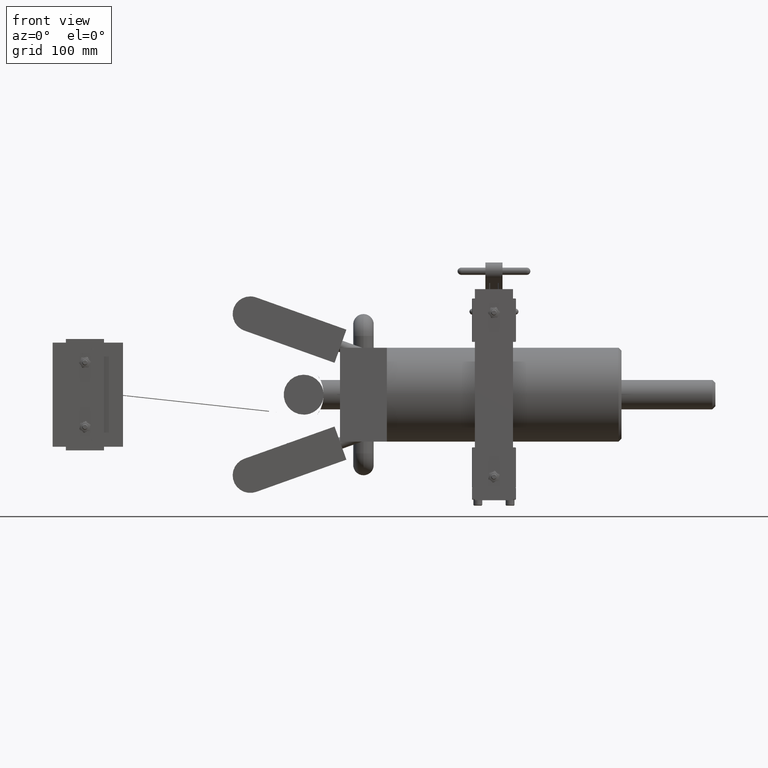
[diagram: clean part render]
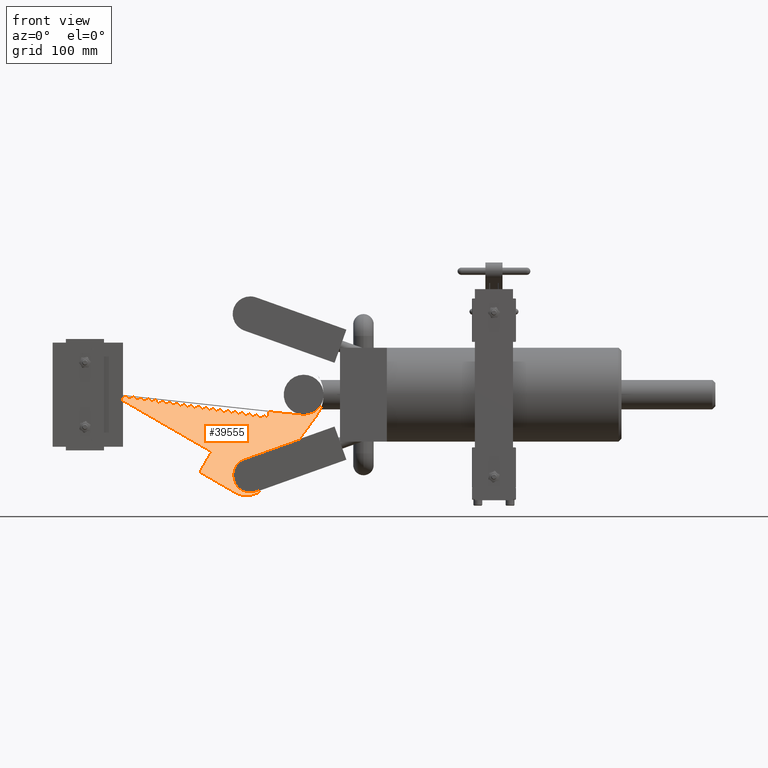
[diagram: same view with one face highlighted and labeled with its STEP entity id]
A machine part, front view. The second image highlights one B-rep face of the part: STEP entity #39555.
In plain terms, the highlighted planar face has unit normal (0, -1, -0).
Its self-contained STEP definition (entity closure, byte-faithful):
#7 = EDGE_CURVE ( 'NONE', #45220, #25416, #14814, .T. ) ;
#174 = CARTESIAN_POINT ( 'NONE',  ( -0.5977196806449521800, 5.092761239986581100, 0.7499999999999972200 ) ) ;
#302 = VECTOR ( 'NONE', #24908, 39.37007874015748100 ) ;
#305 = CARTESIAN_POINT ( 'NONE',  ( -0.4186318083869720600, 3.855656743991955300, 0.7499999999999972200 ) ) ;
#367 = CARTESIAN_POINT ( 'NONE',  ( -3.438261211599978700, 7.873161452950777000, 0.7499999999999972200 ) ) ;
#780 = CARTESIAN_POINT ( 'NONE',  ( -0.2085223599045763800, 2.404261179952289100, 0.7499999999999972200 ) ) ;
#1024 = VECTOR ( 'NONE', #2633, 39.37007874015748100 ) ;
#1257 = EDGE_CURVE ( 'NONE', #38802, #3479, #33853, .T. ) ;
#1289 = DIRECTION ( 'NONE',  ( 0.4472135954999532600, 0.8944271909999181900, -1.138242289317729000E-016 ) ) ;
#1395 = ORIENTED_EDGE ( 'NONE', *, *, #24998, .F. ) ;
#1443 = VERTEX_POINT ( 'NONE', #50062 ) ;
#1621 = ORIENTED_EDGE ( 'NONE', *, *, #23476, .T. ) ;
#1686 = EDGE_CURVE ( 'NONE', #39364, #17904, #38887, .T. ) ;
#1690 = CARTESIAN_POINT ( 'NONE',  ( -0.1500000000000020200, 1.999999999999998400, 0.7499999999999966700 ) ) ;
#1752 = LINE ( 'NONE', #9402, #12614 ) ;
#1851 = VECTOR ( 'NONE', #4894, 39.37007874015748900 ) ;
#1920 = EDGE_CURVE ( 'NONE', #4086, #33610, #32525, .T. ) ;
#2005 = EDGE_CURVE ( 'NONE', #38493, #20471, #39520, .T. ) ;
#2105 = EDGE_CURVE ( 'NONE', #10608, #14800, #3162, .T. ) ;
#2326 = CARTESIAN_POINT ( 'NONE',  ( -0.9111234570964178400, 7.257694107977168400, 0.7499999999999998900 ) ) ;
#2355 = LINE ( 'NONE', #40742, #44449 ) ;
#2372 = DIRECTION ( 'NONE',  ( 0.1079754601226999400, -0.9941535595728113700, 1.023587603743805400E-016 ) ) ;
#2633 = DIRECTION ( 'NONE',  ( -0.8944271909999138600, 0.4472135954999619800, -1.227484511723600900E-017 ) ) ;
#2638 = LINE ( 'NONE', #41326, #13489 ) ;
#2668 = LINE ( 'NONE', #42213, #44754 ) ;
#3130 = EDGE_CURVE ( 'NONE', #47882, #11804, #19012, .T. ) ;
#3162 = CIRCLE ( 'NONE', #37232, 0.7499999999999998900 ) ;
#3213 = VERTEX_POINT ( 'NONE', #12217 ) ;
#3286 = CARTESIAN_POINT ( 'NONE',  ( -0.2001970341557485500, 2.346751434682340600, 0.7499999999999972200 ) ) ;
#3297 = ORIENTED_EDGE ( 'NONE', *, *, #12419, .T. ) ;
#3312 = CARTESIAN_POINT ( 'NONE',  ( -0.7320355848384372300, 6.020589611982546600, 0.7499999999999972200 ) ) ;
#3418 = EDGE_CURVE ( 'NONE', #19084, #12032, #40029, .T. ) ;
#3479 = VERTEX_POINT ( 'NONE', #50991 ) ;
#3495 = ORIENTED_EDGE ( 'NONE', *, *, #24358, .T. ) ;
#3559 = VERTEX_POINT ( 'NONE', #47441 ) ;
#3562 = CARTESIAN_POINT ( 'NONE',  ( -0.03445417501893747300, 2.317227087509468500, 0.7499999999999972200 ) ) ;
#3986 = ORIENTED_EDGE ( 'NONE', *, *, #50044, .T. ) ;
#4086 = VERTEX_POINT ( 'NONE', #8823 ) ;
#4312 = DIRECTION ( 'NONE',  ( 0.3363163370681780400, 0.9417490756146478200, -1.144741739626811700E-016 ) ) ;
#4384 = EDGE_CURVE ( 'NONE', #47776, #47410, #48292, .T. ) ;
#4403 = DIRECTION ( 'NONE',  ( 0.4472135954999532600, 0.8944271909999181900, -1.138242289317729000E-016 ) ) ;
#4416 = VERTEX_POINT ( 'NONE', #43156 ) ;
#4428 = VERTEX_POINT ( 'NONE', #18755 ) ;
#4440 = LINE ( 'NONE', #780, #1851 ) ;
#4449 = ORIENTED_EDGE ( 'NONE', *, *, #39299, .T. ) ;
#4469 = DIRECTION ( 'NONE',  ( -1.000000000000000000, 1.456985596620940600E-015, 0.0000000000000000000 ) ) ;
#4481 = DIRECTION ( 'NONE',  ( -1.000000000000000000, 9.992007221626420700E-016, 3.992478743742038300E-017 ) ) ;
#4754 = VERTEX_POINT ( 'NONE', #3286 ) ;
#4894 = DIRECTION ( 'NONE',  ( 0.1432702978064002700, -0.9896835967956958400, 1.004700080516459400E-016 ) ) ;
#4969 = ORIENTED_EDGE ( 'NONE', *, *, #15526, .T. ) ;
#4982 = ORIENTED_EDGE ( 'NONE', *, *, #17111, .F. ) ;
#5038 = CARTESIAN_POINT ( 'NONE',  ( -0.2395439361289918900, 2.618552247997309100, 0.7499999999999972200 ) ) ;
#5216 = VERTEX_POINT ( 'NONE', #11062 ) ;
#5415 = CARTESIAN_POINT ( 'NONE',  ( -0.3738598403224773800, 3.546380619993289700, 0.7499999999999972200 ) ) ;
#5502 = VERTEX_POINT ( 'NONE', #52407 ) ;
#5538 = EDGE_CURVE ( 'NONE', #17749, #35637, #27852, .T. ) ;
#5551 = EDGE_CURVE ( 'NONE', #17049, #49946, #38651, .T. ) ;
#5564 = VECTOR ( 'NONE', #21990, 39.37007874015748900 ) ;
#5615 = VECTOR ( 'NONE', #25979, 39.37007874015748100 ) ;
#5707 = EDGE_CURVE ( 'NONE', #4416, #39550, #41836, .T. ) ;
#5712 = DIRECTION ( 'NONE',  ( 3.992478743742037100E-017, 1.072969629702611400E-016, -1.000000000000000000 ) ) ;
#5796 = LINE ( 'NONE', #50260, #26182 ) ;
#5830 = CARTESIAN_POINT ( 'NONE',  ( -0.3581757445159627900, 4.774208991989271000, 0.7499999999999972200 ) ) ;
#5961 = LINE ( 'NONE', #44931, #16817 ) ;
#5977 = VECTOR ( 'NONE', #42383, 39.37007874015748900 ) ;
#6441 = EDGE_CURVE ( 'NONE', #42174, #27443, #37174, .T. ) ;
#6598 = CARTESIAN_POINT ( 'NONE',  ( -2.436418135980221500, 6.220000000000000600, 0.7499999999999972200 ) ) ;
#6731 = LINE ( 'NONE', #17993, #50028 ) ;
#7088 = LINE ( 'NONE', #51851, #49112 ) ;
#7265 = VECTOR ( 'NONE', #8984, 39.37007874015748100 ) ;
#7273 = LINE ( 'NONE', #46307, #5977 ) ;
#7350 = CARTESIAN_POINT ( 'NONE',  ( -1.000667393225408400, 7.876246355974483700, 0.7499999999999998900 ) ) ;
#7379 = VECTOR ( 'NONE', #32393, 39.37007874015748100 ) ;
#7381 = ORIENTED_EDGE ( 'NONE', *, *, #5707, .T. ) ;
#7467 = VECTOR ( 'NONE', #40400, 39.37007874015748100 ) ;
#7864 = CARTESIAN_POINT ( 'NONE',  ( -0.8215795209674275900, 6.639141859979860200, 0.7499999999999972200 ) ) ;
#8041 = VECTOR ( 'NONE', #33088, 39.37007874015748100 ) ;
#8080 = CARTESIAN_POINT ( 'NONE',  ( -0.9206514811474753000, 7.637458120002702500, 0.7499999999999998900 ) ) ;
#8205 = VECTOR ( 'NONE', #32746, 39.37007874015748900 ) ;
#8343 = CARTESIAN_POINT ( 'NONE',  ( -2.731949404888993200, 7.620924200149640400, 0.7499999999999972200 ) ) ;
#8449 = CARTESIAN_POINT ( 'NONE',  ( -0.5372636167739429600, 6.011313487983892800, 0.7499999999999972200 ) ) ;
#8667 = DIRECTION ( 'NONE',  ( -0.8944271909999138600, 0.4472135954999619800, -1.227484511723600900E-017 ) ) ;
#8823 = CARTESIAN_POINT ( 'NONE',  ( -0.8758795130829800700, 7.328181996004043500, 0.7499999999999998900 ) ) ;
#8937 = ORIENTED_EDGE ( 'NONE', *, *, #49569, .T. ) ;
#8984 = DIRECTION ( 'NONE',  ( -0.8944271909999138600, 0.4472135954999619800, -1.227484511723600900E-017 ) ) ;
#9175 = DIRECTION ( 'NONE',  ( -0.5000000000000002200, 0.8660254037844386000, -7.295950196245386900E-017 ) ) ;
#9231 = DIRECTION ( 'NONE',  ( -0.8944271909999138600, 0.4472135954999619800, -1.227484511723600900E-017 ) ) ;
#9303 = CARTESIAN_POINT ( 'NONE',  ( -4.053609672597115600, 8.380113203083835700, 0.7499999999999998900 ) ) ;
#9306 = EDGE_CURVE ( 'NONE', #25914, #5502, #33081, .T. ) ;
#9402 = CARTESIAN_POINT ( 'NONE',  ( -0.4477196806449526600, 5.392761239986580100, 0.7499999999999972200 ) ) ;
#9479 = ORIENTED_EDGE ( 'NONE', *, *, #42907, .T. ) ;
#9683 = DIRECTION ( 'NONE',  ( 0.4472135954999532600, 0.8944271909999181900, -1.138242289317729000E-016 ) ) ;
#9798 = LINE ( 'NONE', #5038, #31493 ) ;
#9815 = ORIENTED_EDGE ( 'NONE', *, *, #10136, .F. ) ;
#9820 = CARTESIAN_POINT ( 'NONE',  ( -0.2238598403224773500, 3.846380619993301500, 0.7499999999999972200 ) ) ;
#9999 = VECTOR ( 'NONE', #45160, 39.37007874015748100 ) ;
#10042 = VERTEX_POINT ( 'NONE', #29945 ) ;
#10136 = EDGE_CURVE ( 'NONE', #3559, #38771, #50804, .T. ) ;
#10306 = CARTESIAN_POINT ( 'NONE',  ( -9.522350451123167300E-015, 9.500000000000026600, 0.7499999999999998900 ) ) ;
#10382 = CARTESIAN_POINT ( 'NONE',  ( -0.1003512623096665100, 2.923955911087649200, 0.7499999999999972200 ) ) ;
#10505 = LINE ( 'NONE', #25418, #52573 ) ;
#10525 = DIRECTION ( 'NONE',  ( 0.4472135954999532600, 0.8944271909999181900, -1.138242289317729000E-016 ) ) ;
#10608 = VERTEX_POINT ( 'NONE', #50138 ) ;
#10666 = EDGE_CURVE ( 'NONE', #40388, #3213, #48210, .T. ) ;
#10906 = ORIENTED_EDGE ( 'NONE', *, *, #12946, .T. ) ;
#10966 = EDGE_CURVE ( 'NONE', #32551, #51692, #16344, .T. ) ;
#11022 = DIRECTION ( 'NONE',  ( 0.1079754601226999300, -0.9941535595728111500, 1.023587603743805200E-016 ) ) ;
#11062 = CARTESIAN_POINT ( 'NONE',  ( -0.06740271866430191900, 2.620591499298559100, 0.7499999999999972200 ) ) ;
#11106 = VERTEX_POINT ( 'NONE', #31337 ) ;
#11124 = LINE ( 'NONE', #20805, #302 ) ;
#11380 = VECTOR ( 'NONE', #11428, 39.37007874015748100 ) ;
#11410 = EDGE_CURVE ( 'NONE', #34424, #1443, #40524, .T. ) ;
#11428 = DIRECTION ( 'NONE',  ( 0.4472135954999532600, 0.8944271909999181900, -1.138242289317729000E-016 ) ) ;
#11509 = DIRECTION ( 'NONE',  ( 0.4472135954999532600, 0.8944271909999181900, -1.138242289317729000E-016 ) ) ;
#11804 = VERTEX_POINT ( 'NONE', #36257 ) ;
#11895 = VERTEX_POINT ( 'NONE', #28591 ) ;
#12032 = VERTEX_POINT ( 'NONE', #18375 ) ;
#12217 = CARTESIAN_POINT ( 'NONE',  ( -0.6268075529029328900, 6.629865735981206300, 0.7499999999999972200 ) ) ;
#12258 = EDGE_CURVE ( 'NONE', #49946, #38802, #11124, .T. ) ;
#12318 = CARTESIAN_POINT ( 'NONE',  ( -2.028345034903341700E-015, 1.999999999999996200, 0.7499999999999966700 ) ) ;
#12325 = EDGE_CURVE ( 'NONE', #1443, #25914, #18131, .T. ) ;
#12419 = EDGE_CURVE ( 'NONE', #20569, #17049, #48066, .T. ) ;
#12592 = DIRECTION ( 'NONE',  ( -3.992478743742037100E-017, -1.072969629702611400E-016, 1.000000000000000000 ) ) ;
#12607 = CARTESIAN_POINT ( 'NONE',  ( -0.5820355848384377600, 6.320589611982549100, 0.7499999999999972200 ) ) ;
#12614 = VECTOR ( 'NONE', #13492, 39.37007874015748100 ) ;
#12682 = CARTESIAN_POINT ( 'NONE',  ( -0.6268075529029328900, 6.629865735981206300, 0.7499999999999972200 ) ) ;
#12786 = CARTESIAN_POINT ( 'NONE',  ( -4.302443539764681200, 7.720000000000024600, 0.7499999999999972200 ) ) ;
#12946 = EDGE_CURVE ( 'NONE', #33610, #34424, #49289, .T. ) ;
#13063 = VERTEX_POINT ( 'NONE', #10382 ) ;
#13265 = DIRECTION ( 'NONE',  ( -1.000000000000000000, -2.825744955125972300E-015, 3.992478743742079000E-017 ) ) ;
#13489 = VECTOR ( 'NONE', #16932, 39.37007874015748100 ) ;
#13492 = DIRECTION ( 'NONE',  ( -0.8944271909999138600, 0.4472135954999619800, -1.227484511723600900E-017 ) ) ;
#13649 = VERTEX_POINT ( 'NONE', #48058 ) ;
#13682 = ORIENTED_EDGE ( 'NONE', *, *, #30202, .T. ) ;
#13836 = DIRECTION ( 'NONE',  ( 0.4472135954999532600, 0.8944271909999181900, -1.138242289317729000E-016 ) ) ;
#13840 = AXIS2_PLACEMENT_3D ( 'NONE', #37031, #12592, #41090 ) ;
#13923 = DIRECTION ( 'NONE',  ( 0.4472135954999532600, 0.8944271909999181900, -1.138242289317729000E-016 ) ) ;
#13995 = DIRECTION ( 'NONE',  ( 0.4472135954999532600, 0.8944271909999181900, -1.138242289317729000E-016 ) ) ;
#14399 = DIRECTION ( 'NONE',  ( -1.000000000000000000, 7.284927983104702900E-016, 0.0000000000000000000 ) ) ;
#14505 = CARTESIAN_POINT ( 'NONE',  ( -2.028345034903341700E-015, 1.999999999999996200, 0.7499999999999966700 ) ) ;
#14541 = VERTEX_POINT ( 'NONE', #26245 ) ;
#14614 = ORIENTED_EDGE ( 'NONE', *, *, #12325, .T. ) ;
#14800 = VERTEX_POINT ( 'NONE', #40664 ) ;
#14814 = LINE ( 'NONE', #33600, #24390 ) ;
#15177 = VERTEX_POINT ( 'NONE', #38541 ) ;
#15322 = CIRCLE ( 'NONE', #43748, 1.000000000000000200 ) ;
#15526 = EDGE_CURVE ( 'NONE', #3213, #38493, #17096, .T. ) ;
#15552 = VERTEX_POINT ( 'NONE', #41184 ) ;
#15736 = EDGE_LOOP ( 'NONE', ( #36943, #1395, #38472, #42282, #20718, #17570, #40585, #45812, #18132, #33823, #48644, #45321, #32947, #44523, #40256, #43520, #48181, #27075, #3495, #45282, #16782, #9479, #47371, #20254, #39196, #42515, #43259, #8937, #19887, #3297, #40926, #28710, #48839, #3986, #38758, #46615, #4969, #36010, #20266, #41337, #4449, #37111, #10906, #49796, #14614, #45656, #41570, #7381, #23028, #45060, #9815, #4982, #16441, #24162, #44693, #18823, #23637, #15851, #1621, #39616, #13682, #40202 ) ) ;
#15806 = VERTEX_POINT ( 'NONE', #6598 ) ;
#15851 = ORIENTED_EDGE ( 'NONE', *, *, #2105, .T. ) ;
#15995 = CARTESIAN_POINT ( 'NONE',  ( -0.7863355769539899200, 6.709629748006735300, 0.7499999999999972200 ) ) ;
#16011 = CARTESIAN_POINT ( 'NONE',  ( -0.3581757445159627900, 4.774208991989271000, 0.7499999999999972200 ) ) ;
#16040 = VERTEX_POINT ( 'NONE', #28325 ) ;
#16204 = VECTOR ( 'NONE', #40822, 39.37007874015748900 ) ;
#16344 = CIRCLE ( 'NONE', #33108, 1.499999999999999800 ) ;
#16441 = ORIENTED_EDGE ( 'NONE', *, *, #42950, .F. ) ;
#16511 = CARTESIAN_POINT ( 'NONE',  ( -0.8954393612899028700, 8.485522479973141700, 0.7499999999999998900 ) ) ;
#16670 = CARTESIAN_POINT ( 'NONE',  ( -0.08954393612899233500, 2.918552247997312100, 0.7499999999999972200 ) ) ;
#16782 = ORIENTED_EDGE ( 'NONE', *, *, #42917, .T. ) ;
#16817 = VECTOR ( 'NONE', #4312, 39.37007874015748900 ) ;
#16932 = DIRECTION ( 'NONE',  ( 0.5000000000000002200, -0.8660254037844383700, 7.295950196245385700E-017 ) ) ;
#16938 = EDGE_CURVE ( 'NONE', #4428, #15552, #50054, .T. ) ;
#17049 = VERTEX_POINT ( 'NONE', #46558 ) ;
#17066 = DIRECTION ( 'NONE',  ( 0.4472135954999532600, 0.8944271909999181900, -1.138242289317729000E-016 ) ) ;
#17096 = LINE ( 'NONE', #12682, #38726 ) ;
#17111 = EDGE_CURVE ( 'NONE', #50383, #3559, #32890, .T. ) ;
#17265 = LINE ( 'NONE', #16670, #9999 ) ;
#17397 = DIRECTION ( 'NONE',  ( 0.4472135954999532600, 0.8944271909999181900, -1.138242289317729000E-016 ) ) ;
#17534 = VERTEX_POINT ( 'NONE', #46842 ) ;
#17570 = ORIENTED_EDGE ( 'NONE', *, *, #51149, .F. ) ;
#17622 = CARTESIAN_POINT ( 'NONE',  ( -0.2843159041934868500, 2.927828371995965900, 0.7499999999999972200 ) ) ;
#17726 = VECTOR ( 'NONE', #40954, 39.37007874015748100 ) ;
#17749 = VERTEX_POINT ( 'NONE', #3562 ) ;
#17828 = DIRECTION ( 'NONE',  ( -0.8944271909999138600, 0.4472135954999619800, -1.227484511723600900E-017 ) ) ;
#17890 = VERTEX_POINT ( 'NONE', #28873 ) ;
#17904 = VERTEX_POINT ( 'NONE', #24760 ) ;
#17993 = CARTESIAN_POINT ( 'NONE',  ( -0.1500000000000020200, 1.999999999999998400, 0.7499999999999966700 ) ) ;
#18127 = LINE ( 'NONE', #5415, #49329 ) ;
#18131 = LINE ( 'NONE', #37565, #39808 ) ;
#18132 = ORIENTED_EDGE ( 'NONE', *, *, #31819, .F. ) ;
#18192 = LINE ( 'NONE', #32221, #7379 ) ;
#18375 = CARTESIAN_POINT ( 'NONE',  ( -3.315160161513801100, 5.742025834970118800, 0.7499999999999972200 ) ) ;
#18713 = DIRECTION ( 'NONE',  ( -0.8944271909999138600, 0.4472135954999619800, -1.227484511723600900E-017 ) ) ;
#18755 = CARTESIAN_POINT ( 'NONE',  ( -0.1343159041934873800, 3.227828371995968800, 0.7499999999999972200 ) ) ;
#18823 = ORIENTED_EDGE ( 'NONE', *, *, #3130, .T. ) ;
#18838 = VECTOR ( 'NONE', #17066, 39.37007874015748100 ) ;
#18988 = LINE ( 'NONE', #17622, #5615 ) ;
#19012 = LINE ( 'NONE', #8343, #8205 ) ;
#19084 = VERTEX_POINT ( 'NONE', #52013 ) ;
#19085 = DIRECTION ( 'NONE',  ( -0.8944271909999138600, 0.4472135954999619800, -1.227484511723600900E-017 ) ) ;
#19099 = CARTESIAN_POINT ( 'NONE',  ( -3.302443539764681200, 7.720000000000023700, 0.7499999999999972200 ) ) ;
#19622 = VECTOR ( 'NONE', #13265, 39.37007874015748100 ) ;
#19769 = VECTOR ( 'NONE', #18713, 39.37007874015748100 ) ;
#19782 = FACE_OUTER_BOUND ( 'NONE', #15736, .T. ) ;
#19887 = ORIENTED_EDGE ( 'NONE', *, *, #49763, .T. ) ;
#20161 = DIRECTION ( 'NONE',  ( -0.8944271909999138600, 0.4472135954999619800, -1.227484511723600900E-017 ) ) ;
#20254 = ORIENTED_EDGE ( 'NONE', *, *, #52690, .T. ) ;
#20266 = ORIENTED_EDGE ( 'NONE', *, *, #44158, .T. ) ;
#20436 = CARTESIAN_POINT ( 'NONE',  ( -0.4634037764514672400, 4.164932867990612100, 0.7499999999999972200 ) ) ;
#20460 = DIRECTION ( 'NONE',  ( -3.992478743742037100E-017, -1.072969629702611400E-016, 1.000000000000000000 ) ) ;
#20471 = VERTEX_POINT ( 'NONE', #45484 ) ;
#20569 = VERTEX_POINT ( 'NONE', #42066 ) ;
#20572 = CARTESIAN_POINT ( 'NONE',  ( -0.3386158963090394900, 3.616868508020165200, 0.7499999999999972200 ) ) ;
#20718 = ORIENTED_EDGE ( 'NONE', *, *, #22070, .T. ) ;
#20805 = CARTESIAN_POINT ( 'NONE',  ( -0.6872636167739424300, 5.711313487983890300, 0.7499999999999972200 ) ) ;
#21361 = LINE ( 'NONE', #33608, #30925 ) ;
#21479 = EDGE_CURVE ( 'NONE', #15552, #47776, #5796, .T. ) ;
#21670 = VECTOR ( 'NONE', #10525, 39.37007874015748100 ) ;
#21739 = LINE ( 'NONE', #47580, #33886 ) ;
#21857 = CARTESIAN_POINT ( 'NONE',  ( -0.8506673932254083000, 8.176246355974486200, 0.7499999999999998900 ) ) ;
#21990 = DIRECTION ( 'NONE',  ( 0.1432702978063847000, -0.9896835967956980600, 1.004700080516468000E-016 ) ) ;
#22060 = CIRCLE ( 'NONE', #44106, 1.000000000000000200 ) ;
#22070 = EDGE_CURVE ( 'NONE', #13649, #11106, #6731, .T. ) ;
#22772 = LINE ( 'NONE', #3312, #32356 ) ;
#22862 = DIRECTION ( 'NONE',  ( 0.1079754601226999400, -0.9941535595728113700, 1.023587603743805400E-016 ) ) ;
#22864 = LINE ( 'NONE', #21857, #48347 ) ;
#23028 = ORIENTED_EDGE ( 'NONE', *, *, #33981, .T. ) ;
#23189 = CARTESIAN_POINT ( 'NONE',  ( -0.4029477125804575300, 5.083485115987927300, 0.7499999999999972200 ) ) ;
#23204 = DIRECTION ( 'NONE',  ( -1.000000000000000000, 1.092739197465705100E-015, 0.0000000000000000000 ) ) ;
#23476 = EDGE_CURVE ( 'NONE', #14800, #26448, #5961, .T. ) ;
#23637 = ORIENTED_EDGE ( 'NONE', *, *, #32072, .T. ) ;
#24042 = VECTOR ( 'NONE', #24536, 39.37007874015748100 ) ;
#24162 = ORIENTED_EDGE ( 'NONE', *, *, #10966, .T. ) ;
#24358 = EDGE_CURVE ( 'NONE', #33145, #42174, #2668, .T. ) ;
#24390 = VECTOR ( 'NONE', #41779, 39.37007874015748100 ) ;
#24536 = DIRECTION ( 'NONE',  ( 0.4472135954999532600, 0.8944271909999181900, -1.138242289317729000E-016 ) ) ;
#24760 = CARTESIAN_POINT ( 'NONE',  ( -0.4729318005025245400, 4.544696880016143600, 0.7499999999999972200 ) ) ;
#24789 = PLANE ( 'NONE',  #34214 ) ;
#24819 = VECTOR ( 'NONE', #51821, 39.37007874015748100 ) ;
#24908 = DIRECTION ( 'NONE',  ( 0.4472135954999532600, 0.8944271909999181900, -1.138242289317729000E-016 ) ) ;
#24998 = EDGE_CURVE ( 'NONE', #15806, #19084, #21739, .T. ) ;
#25329 = DIRECTION ( 'NONE',  ( 0.4472135954999532600, 0.8944271909999181900, -1.138242289317729000E-016 ) ) ;
#25343 = DIRECTION ( 'NONE',  ( 0.4472135954999532600, 0.8944271909999181900, -1.138242289317729000E-016 ) ) ;
#25416 = VERTEX_POINT ( 'NONE', #25652 ) ;
#25418 = CARTESIAN_POINT ( 'NONE',  ( -2.436418135980221500, 6.220000000000000600, 0.7499999999999972200 ) ) ;
#25652 = CARTESIAN_POINT ( 'NONE',  ( -0.4029477125804575300, 5.083485115987927300, 0.7499999999999972200 ) ) ;
#25914 = VERTEX_POINT ( 'NONE', #45890 ) ;
#25979 = DIRECTION ( 'NONE',  ( 0.4472135954999532600, 0.8944271909999181900, -1.138242289317729000E-016 ) ) ;
#26182 = VECTOR ( 'NONE', #9683, 39.37007874015748100 ) ;
#26245 = CARTESIAN_POINT ( 'NONE',  ( -0.2490719601800497100, 2.998316260022841000, 0.7499999999999972200 ) ) ;
#26302 = VECTOR ( 'NONE', #4403, 39.37007874015748100 ) ;
#26364 = EDGE_CURVE ( 'NONE', #4754, #13649, #4440, .T. ) ;
#26410 = VECTOR ( 'NONE', #13836, 39.37007874015748100 ) ;
#26448 = VERTEX_POINT ( 'NONE', #9303 ) ;
#26547 = VECTOR ( 'NONE', #28393, 39.37007874015748100 ) ;
#26560 = VECTOR ( 'NONE', #13995, 39.37007874015748100 ) ;
#26615 = VECTOR ( 'NONE', #46476, 39.37007874015748900 ) ;
#26647 = VECTOR ( 'NONE', #46886, 39.37007874015748100 ) ;
#27069 = CARTESIAN_POINT ( 'NONE',  ( -0.6715795209674275700, 6.939141859979862700, 0.7499999999999998900 ) ) ;
#27075 = ORIENTED_EDGE ( 'NONE', *, *, #45136, .T. ) ;
#27438 = CARTESIAN_POINT ( 'NONE',  ( -2.028345034903341700E-015, 1.999999999999996200, 0.7499999999999966700 ) ) ;
#27443 = VERTEX_POINT ( 'NONE', #43298 ) ;
#27670 = CIRCLE ( 'NONE', #28846, 0.7499999999999998900 ) ;
#27852 = LINE ( 'NONE', #40485, #49472 ) ;
#27912 = LINE ( 'NONE', #20436, #24042 ) ;
#28197 = EDGE_CURVE ( 'NONE', #47142, #45220, #41243, .T. ) ;
#28273 = EDGE_CURVE ( 'NONE', #17890, #40388, #46932, .T. ) ;
#28325 = CARTESIAN_POINT ( 'NONE',  ( -0.4477196806449526600, 5.392761239986580100, 0.7499999999999972200 ) ) ;
#28393 = DIRECTION ( 'NONE',  ( -0.8944271909999138600, 0.4472135954999619800, -1.227484511723600900E-017 ) ) ;
#28576 = LINE ( 'NONE', #174, #17726 ) ;
#28591 = CARTESIAN_POINT ( 'NONE',  ( -0.5624757366315154000, 5.163249128013456300, 0.7499999999999972200 ) ) ;
#28698 = VECTOR ( 'NONE', #36370, 39.37007874015748100 ) ;
#28710 = ORIENTED_EDGE ( 'NONE', *, *, #12258, .T. ) ;
#28846 = AXIS2_PLACEMENT_3D ( 'NONE', #30117, #5712, #34209 ) ;
#28873 = CARTESIAN_POINT ( 'NONE',  ( -0.5820355848384377600, 6.320589611982549100, 0.7499999999999972200 ) ) ;
#28890 = DIRECTION ( 'NONE',  ( 3.992478743742037100E-017, 1.072969629702611400E-016, -1.000000000000000000 ) ) ;
#28901 = DIRECTION ( 'NONE',  ( -3.992478743742027900E-017, 1.072969629702612200E-016, -1.000000000000000000 ) ) ;
#29010 = CARTESIAN_POINT ( 'NONE',  ( -0.1343159041934873800, 3.227828371995968800, 0.7499999999999972200 ) ) ;
#29306 = EDGE_CURVE ( 'NONE', #25416, #11895, #42399, .T. ) ;
#29743 = EDGE_CURVE ( 'NONE', #13063, #14541, #17265, .T. ) ;
#29945 = CARTESIAN_POINT ( 'NONE',  ( -0.2042999921155543300, 2.689040136024184700, 0.7499999999999972200 ) ) ;
#30116 = LINE ( 'NONE', #42419, #50463 ) ;
#30117 = CARTESIAN_POINT ( 'NONE',  ( -3.438261211599978700, 7.873161452950777000, 0.7499999999999972200 ) ) ;
#30202 = EDGE_CURVE ( 'NONE', #35922, #42313, #22060, .T. ) ;
#30851 = EDGE_CURVE ( 'NONE', #15177, #51301, #18192, .T. ) ;
#30925 = VECTOR ( 'NONE', #17397, 39.37007874015748100 ) ;
#31001 = VECTOR ( 'NONE', #25343, 39.37007874015748100 ) ;
#31166 = CARTESIAN_POINT ( 'NONE',  ( -0.1595280240510593100, 2.379764012025530100, 0.7499999999999972200 ) ) ;
#31259 = CARTESIAN_POINT ( 'NONE',  ( -0.5372636167739429600, 6.011313487983892800, 0.7499999999999972200 ) ) ;
#31337 = CARTESIAN_POINT ( 'NONE',  ( -0.02676846386163117900, 2.246463072276742200, 0.7499999999999972200 ) ) ;
#31445 = LINE ( 'NONE', #27438, #44828 ) ;
#31493 = VECTOR ( 'NONE', #25329, 39.37007874015748100 ) ;
#31819 = EDGE_CURVE ( 'NONE', #5216, #17534, #37888, .T. ) ;
#31962 = LINE ( 'NONE', #16511, #52326 ) ;
#32011 = EDGE_CURVE ( 'NONE', #10042, #36553, #9798, .T. ) ;
#32072 = EDGE_CURVE ( 'NONE', #11804, #10608, #27670, .T. ) ;
#32083 = CARTESIAN_POINT ( 'NONE',  ( -0.3833878643735351100, 3.926144632018830500, 0.7499999999999972200 ) ) ;
#32084 = EDGE_CURVE ( 'NONE', #51692, #47882, #7273, .T. ) ;
#32221 = CARTESIAN_POINT ( 'NONE',  ( -0.8663514890319222700, 6.948417983978512100, 0.7499999999999998900 ) ) ;
#32249 = LINE ( 'NONE', #27069, #1024 ) ;
#32356 = VECTOR ( 'NONE', #11509, 39.37007874015748100 ) ;
#32393 = DIRECTION ( 'NONE',  ( 0.4472135954999532600, 0.8944271909999181900, -1.138242289317729000E-016 ) ) ;
#32426 = CARTESIAN_POINT ( 'NONE',  ( -0.8748551324240828600, 10.05498159509205000, 0.7499999999999998900 ) ) ;
#32525 = LINE ( 'NONE', #2326, #21670 ) ;
#32545 = EDGE_CURVE ( 'NONE', #13063, #36553, #31445, .T. ) ;
#32551 = VERTEX_POINT ( 'NONE', #39712 ) ;
#32573 = CARTESIAN_POINT ( 'NONE',  ( -0.5177037685670199400, 4.853973004014799900, 0.7499999999999972200 ) ) ;
#32738 = DIRECTION ( 'NONE',  ( -0.8944271909999138600, 0.4472135954999619800, -1.227484511723600900E-017 ) ) ;
#32746 = DIRECTION ( 'NONE',  ( -0.3363163370681781000, -0.9417490756146478200, 1.144741739626811700E-016 ) ) ;
#32890 = LINE ( 'NONE', #14505, #44994 ) ;
#32947 = ORIENTED_EDGE ( 'NONE', *, *, #29743, .T. ) ;
#33081 = LINE ( 'NONE', #7350, #11380 ) ;
#33088 = DIRECTION ( 'NONE',  ( -0.8944271909999138600, 0.4472135954999619800, -1.227484511723600900E-017 ) ) ;
#33108 = AXIS2_PLACEMENT_3D ( 'NONE', #10306, #38795, #14399 ) ;
#33145 = VERTEX_POINT ( 'NONE', #9820 ) ;
#33169 = EDGE_CURVE ( 'NONE', #35637, #17534, #30116, .T. ) ;
#33288 = CARTESIAN_POINT ( 'NONE',  ( -0.9558954251609125300, 7.566970231975827400, 0.7499999999999998900 ) ) ;
#33325 = CARTESIAN_POINT ( 'NONE',  ( -0.7611234570964178200, 7.557694107977173600, 0.7499999999999998900 ) ) ;
#33377 = CARTESIAN_POINT ( 'NONE',  ( -1.045439361289902700, 8.185522479973137400, 0.7499999999999998900 ) ) ;
#33413 = CARTESIAN_POINT ( 'NONE',  ( -0.7611234570964178200, 7.557694107977173600, 0.7499999999999998900 ) ) ;
#33539 = VECTOR ( 'NONE', #22862, 39.37007874015747400 ) ;
#33592 = EDGE_CURVE ( 'NONE', #42313, #12032, #2638, .T. ) ;
#33600 = CARTESIAN_POINT ( 'NONE',  ( -0.5529477125804575000, 4.783485115987924800, 0.7499999999999972200 ) ) ;
#33608 = CARTESIAN_POINT ( 'NONE',  ( -0.5081757445159623700, 4.474208991989268500, 0.7499999999999972200 ) ) ;
#33610 = VERTEX_POINT ( 'NONE', #33325 ) ;
#33823 = ORIENTED_EDGE ( 'NONE', *, *, #40489, .T. ) ;
#33853 = LINE ( 'NONE', #8449, #44676 ) ;
#33886 = VECTOR ( 'NONE', #51651, 39.37007874015748900 ) ;
#33981 = EDGE_CURVE ( 'NONE', #39550, #34293, #31962, .T. ) ;
#34207 = CARTESIAN_POINT ( 'NONE',  ( -1.109413514259050400, 8.627443595388284000, 0.7499999999999998900 ) ) ;
#34209 = DIRECTION ( 'NONE',  ( -1.000000000000000000, 1.456985596620940600E-015, 0.0000000000000000000 ) ) ;
#34214 = AXIS2_PLACEMENT_3D ( 'NONE', #40986, #28901, #4481 ) ;
#34256 = CARTESIAN_POINT ( 'NONE',  ( -0.09794046630709799000, 2.901759187641099700, 0.7499999999999972200 ) ) ;
#34293 = VERTEX_POINT ( 'NONE', #39792 ) ;
#34424 = VERTEX_POINT ( 'NONE', #8080 ) ;
#34899 = CIRCLE ( 'NONE', #13840, 0.8799999999999987800 ) ;
#35637 = VERTEX_POINT ( 'NONE', #31166 ) ;
#35922 = VERTEX_POINT ( 'NONE', #12786 ) ;
#36010 = ORIENTED_EDGE ( 'NONE', *, *, #2005, .T. ) ;
#36026 = CARTESIAN_POINT ( 'NONE',  ( -0.3134037764514676600, 4.464932867990614600, 0.7499999999999972200 ) ) ;
#36048 = CARTESIAN_POINT ( 'NONE',  ( -0.7163514890319231400, 7.248417983978514600, 0.7499999999999998900 ) ) ;
#36142 = VECTOR ( 'NONE', #41106, 39.37007874015748100 ) ;
#36257 = CARTESIAN_POINT ( 'NONE',  ( -2.731949404888993600, 7.620924200149640400, 0.7499999999999972200 ) ) ;
#36370 = DIRECTION ( 'NONE',  ( 0.4472135954999532600, 0.8944271909999181900, -1.138242289317729000E-016 ) ) ;
#36553 = VERTEX_POINT ( 'NONE', #34256 ) ;
#36943 = ORIENTED_EDGE ( 'NONE', *, *, #3418, .F. ) ;
#36949 = LINE ( 'NONE', #39730, #24819 ) ;
#37031 = CARTESIAN_POINT ( 'NONE',  ( -1.017183092052888200E-014, 10.15000000000002500, 0.7499999999999998900 ) ) ;
#37111 = ORIENTED_EDGE ( 'NONE', *, *, #1920, .T. ) ;
#37174 = LINE ( 'NONE', #305, #26302 ) ;
#37232 = AXIS2_PLACEMENT_3D ( 'NONE', #367, #28890, #4469 ) ;
#37565 = CARTESIAN_POINT ( 'NONE',  ( -0.8058954251609135000, 7.866970231975829900, 0.7499999999999998900 ) ) ;
#37888 = LINE ( 'NONE', #12318, #16204 ) ;
#38073 = LINE ( 'NONE', #1690, #5564 ) ;
#38245 = CARTESIAN_POINT ( 'NONE',  ( -0.6424916487094477500, 5.402037363985233900, 0.7499999999999972200 ) ) ;
#38406 = CARTESIAN_POINT ( 'NONE',  ( -0.7768075529029329100, 6.329865735981202900, 0.7499999999999972200 ) ) ;
#38472 = ORIENTED_EDGE ( 'NONE', *, *, #52679, .F. ) ;
#38493 = VERTEX_POINT ( 'NONE', #15995 ) ;
#38541 = CARTESIAN_POINT ( 'NONE',  ( -0.8311075450184852700, 7.018905872005391600, 0.7499999999999998900 ) ) ;
#38651 = LINE ( 'NONE', #44577, #26547 ) ;
#38703 = CARTESIAN_POINT ( 'NONE',  ( -0.1790878722579822000, 3.537104495994636300, 0.7499999999999972200 ) ) ;
#38726 = VECTOR ( 'NONE', #49175, 39.37007874015748100 ) ;
#38758 = ORIENTED_EDGE ( 'NONE', *, *, #28273, .T. ) ;
#38771 = VERTEX_POINT ( 'NONE', #39257 ) ;
#38795 = DIRECTION ( 'NONE',  ( -3.992478743742037100E-017, -1.072969629702611400E-016, 1.000000000000000000 ) ) ;
#38802 = VERTEX_POINT ( 'NONE', #31259 ) ;
#38887 = LINE ( 'NONE', #39383, #19769 ) ;
#39196 = ORIENTED_EDGE ( 'NONE', *, *, #28197, .T. ) ;
#39257 = CARTESIAN_POINT ( 'NONE',  ( -1.109413514259050400, 8.627443595388284000, 0.7499999999999998900 ) ) ;
#39299 = EDGE_CURVE ( 'NONE', #51301, #4086, #7088, .T. ) ;
#39364 = VERTEX_POINT ( 'NONE', #36026 ) ;
#39383 = CARTESIAN_POINT ( 'NONE',  ( -0.3134037764514676600, 4.464932867990614600, 0.7499999999999972200 ) ) ;
#39520 = LINE ( 'NONE', #7864, #28698 ) ;
#39550 = VERTEX_POINT ( 'NONE', #49155 ) ;
#39555 = ADVANCED_FACE ( 'NONE', ( #19782 ), #24789, .F. ) ;
#39616 = ORIENTED_EDGE ( 'NONE', *, *, #47967, .T. ) ;
#39712 = CARTESIAN_POINT ( 'NONE',  ( -0.3437664595306350600, 10.96007692307695300, 0.7499999999999998900 ) ) ;
#39730 = CARTESIAN_POINT ( 'NONE',  ( -0.04477196806449739600, 2.609276123998655700, 0.7499999999999972200 ) ) ;
#39763 = DIRECTION ( 'NONE',  ( -0.8944271909999138600, 0.4472135954999619800, -1.227484511723600900E-017 ) ) ;
#39792 = CARTESIAN_POINT ( 'NONE',  ( -1.103961721194477000, 8.589783659925428700, 0.7499999999999998900 ) ) ;
#39808 = VECTOR ( 'NONE', #49627, 39.37007874015748100 ) ;
#40029 = LINE ( 'NONE', #41774, #19622 ) ;
#40202 = ORIENTED_EDGE ( 'NONE', *, *, #33592, .T. ) ;
#40256 = ORIENTED_EDGE ( 'NONE', *, *, #16938, .T. ) ;
#40388 = VERTEX_POINT ( 'NONE', #43109 ) ;
#40400 = DIRECTION ( 'NONE',  ( -0.8944271909999138600, 0.4472135954999619800, -1.227484511723600900E-017 ) ) ;
#40485 = CARTESIAN_POINT ( 'NONE',  ( -2.328105251552139000E-015, 2.300000000000001200, 0.7499999999999972200 ) ) ;
#40489 = EDGE_CURVE ( 'NONE', #5216, #10042, #36949, .T. ) ;
#40524 = LINE ( 'NONE', #33288, #18838 ) ;
#40585 = ORIENTED_EDGE ( 'NONE', *, *, #5538, .T. ) ;
#40664 = CARTESIAN_POINT ( 'NONE',  ( -4.144573018310963700, 8.125398705751912600, 0.7499999999999972200 ) ) ;
#40742 = CARTESIAN_POINT ( 'NONE',  ( -0.2686318083869723200, 4.155656743991958300, 0.7499999999999972200 ) ) ;
#40822 = DIRECTION ( 'NONE',  ( 0.1079754601226999300, -0.9941535595728111500, 1.023587603743805200E-016 ) ) ;
#40897 = EDGE_CURVE ( 'NONE', #5502, #4416, #22864, .T. ) ;
#40926 = ORIENTED_EDGE ( 'NONE', *, *, #5551, .T. ) ;
#40954 = DIRECTION ( 'NONE',  ( 0.4472135954999532600, 0.8944271909999181900, -1.138242289317729000E-016 ) ) ;
#40963 = CARTESIAN_POINT ( 'NONE',  ( -4.168468943549117800, 7.220000000000017500, 0.7499999999999972200 ) ) ;
#40986 = CARTESIAN_POINT ( 'NONE',  ( -9.522350451123167300E-015, 9.500000000000026600, 0.7499999999999998900 ) ) ;
#41090 = DIRECTION ( 'NONE',  ( 1.000000000000000000, 0.0000000000000000000, 0.0000000000000000000 ) ) ;
#41106 = DIRECTION ( 'NONE',  ( -0.8944271909999138600, 0.4472135954999619800, -1.227484511723600900E-017 ) ) ;
#41135 = VECTOR ( 'NONE', #19085, 39.37007874015748100 ) ;
#41184 = CARTESIAN_POINT ( 'NONE',  ( -0.2938439282445444200, 3.307592384021497800, 0.7499999999999972200 ) ) ;
#41243 = LINE ( 'NONE', #16011, #7467 ) ;
#41326 = CARTESIAN_POINT ( 'NONE',  ( -2.994359057806534000E-017, 0.0000000000000000000, 0.7499999999999998900 ) ) ;
#41337 = ORIENTED_EDGE ( 'NONE', *, *, #30851, .T. ) ;
#41570 = ORIENTED_EDGE ( 'NONE', *, *, #40897, .T. ) ;
#41774 = CARTESIAN_POINT ( 'NONE',  ( 8.606667086336580100E-015, 5.742025834970132100, 0.7499999999999972200 ) ) ;
#41779 = DIRECTION ( 'NONE',  ( 0.4472135954999532600, 0.8944271909999181900, -1.138242289317729000E-016 ) ) ;
#41836 = LINE ( 'NONE', #33377, #31001 ) ;
#42066 = CARTESIAN_POINT ( 'NONE',  ( -0.6072477046960100800, 5.472525252012109000, 0.7499999999999972200 ) ) ;
#42174 = VERTEX_POINT ( 'NONE', #32083 ) ;
#42213 = CARTESIAN_POINT ( 'NONE',  ( -0.2238598403224773500, 3.846380619993301500, 0.7499999999999972200 ) ) ;
#42282 = ORIENTED_EDGE ( 'NONE', *, *, #26364, .T. ) ;
#42313 = VERTEX_POINT ( 'NONE', #40963 ) ;
#42383 = DIRECTION ( 'NONE',  ( -0.8091872791519439900, -0.5875508039809611600, 9.534904697509821300E-017 ) ) ;
#42388 = DIRECTION ( 'NONE',  ( 0.4472135954999532600, 0.8944271909999181900, -1.138242289317729000E-016 ) ) ;
#42399 = LINE ( 'NONE', #23189, #41135 ) ;
#42419 = CARTESIAN_POINT ( 'NONE',  ( -0.1947719680644967600, 2.309276123998652800, 0.7499999999999972200 ) ) ;
#42515 = ORIENTED_EDGE ( 'NONE', *, *, #7, .T. ) ;
#42534 = EDGE_CURVE ( 'NONE', #14541, #4428, #18988, .T. ) ;
#42907 = EDGE_CURVE ( 'NONE', #52353, #39364, #27912, .T. ) ;
#42917 = EDGE_CURVE ( 'NONE', #27443, #52353, #2355, .T. ) ;
#42950 = EDGE_CURVE ( 'NONE', #32551, #50383, #34899, .T. ) ;
#43109 = CARTESIAN_POINT ( 'NONE',  ( -0.7415636088894955700, 6.400353624008078100, 0.7499999999999972200 ) ) ;
#43156 = CARTESIAN_POINT ( 'NONE',  ( -1.010195417276464200, 8.256010368000016100, 0.7499999999999998900 ) ) ;
#43158 = EDGE_CURVE ( 'NONE', #38771, #34293, #38073, .T. ) ;
#43259 = ORIENTED_EDGE ( 'NONE', *, *, #29306, .T. ) ;
#43298 = CARTESIAN_POINT ( 'NONE',  ( -0.2686318083869723200, 4.155656743991958300, 0.7499999999999972200 ) ) ;
#43520 = ORIENTED_EDGE ( 'NONE', *, *, #21479, .T. ) ;
#43563 = CARTESIAN_POINT ( 'NONE',  ( -0.6520196727605046500, 5.781801376010765400, 0.7499999999999972200 ) ) ;
#43748 = AXIS2_PLACEMENT_3D ( 'NONE', #44869, #20460, #48934 ) ;
#44106 = AXIS2_PLACEMENT_3D ( 'NONE', #19099, #47594, #23204 ) ;
#44158 = EDGE_CURVE ( 'NONE', #20471, #15177, #32249, .T. ) ;
#44357 = LINE ( 'NONE', #51330, #33539 ) ;
#44449 = VECTOR ( 'NONE', #32738, 39.37007874015748100 ) ;
#44523 = ORIENTED_EDGE ( 'NONE', *, *, #42534, .T. ) ;
#44577 = CARTESIAN_POINT ( 'NONE',  ( -0.4924916487094478400, 5.702037363985236400, 0.7499999999999972200 ) ) ;
#44676 = VECTOR ( 'NONE', #49019, 39.37007874015748100 ) ;
#44693 = ORIENTED_EDGE ( 'NONE', *, *, #32084, .T. ) ;
#44754 = VECTOR ( 'NONE', #17828, 39.37007874015748100 ) ;
#44828 = VECTOR ( 'NONE', #11022, 39.37007874015748900 ) ;
#44869 = CARTESIAN_POINT ( 'NONE',  ( -3.302443539764681200, 7.720000000000023700, 0.7499999999999972200 ) ) ;
#44931 = CARTESIAN_POINT ( 'NONE',  ( -4.144573018310963700, 8.125398705751912600, 0.7499999999999972200 ) ) ;
#44994 = VECTOR ( 'NONE', #2372, 39.37007874015747400 ) ;
#45060 = ORIENTED_EDGE ( 'NONE', *, *, #43158, .F. ) ;
#45136 = EDGE_CURVE ( 'NONE', #47410, #33145, #18127, .T. ) ;
#45160 = DIRECTION ( 'NONE',  ( -0.8944271909999138600, 0.4472135954999619800, -1.227484511723600900E-017 ) ) ;
#45220 = VERTEX_POINT ( 'NONE', #32573 ) ;
#45282 = ORIENTED_EDGE ( 'NONE', *, *, #6441, .T. ) ;
#45321 = ORIENTED_EDGE ( 'NONE', *, *, #32545, .F. ) ;
#45484 = CARTESIAN_POINT ( 'NONE',  ( -0.6715795209674275700, 6.939141859979862700, 0.7499999999999998900 ) ) ;
#45656 = ORIENTED_EDGE ( 'NONE', *, *, #9306, .T. ) ;
#45812 = ORIENTED_EDGE ( 'NONE', *, *, #33169, .T. ) ;
#45890 = CARTESIAN_POINT ( 'NONE',  ( -0.9654234492119709900, 7.946734244001358900, 0.7499999999999998900 ) ) ;
#46307 = CARTESIAN_POINT ( 'NONE',  ( -4.618802153517029800, 8.000000000000026600, 0.7499999999999972200 ) ) ;
#46476 = DIRECTION ( 'NONE',  ( -0.9941535595728113700, -0.1079754601226990700, 5.127680849258156500E-017 ) ) ;
#46558 = CARTESIAN_POINT ( 'NONE',  ( -0.4924916487094478400, 5.702037363985236400, 0.7499999999999972200 ) ) ;
#46615 = ORIENTED_EDGE ( 'NONE', *, *, #10666, .T. ) ;
#46842 = CARTESIAN_POINT ( 'NONE',  ( -0.06235446508436507500, 2.574111129958919900, 0.7499999999999972200 ) ) ;
#46886 = DIRECTION ( 'NONE',  ( -0.8944271909999138600, 0.4472135954999619800, -1.227484511723600900E-017 ) ) ;
#46932 = LINE ( 'NONE', #12607, #36142 ) ;
#47142 = VERTEX_POINT ( 'NONE', #5830 ) ;
#47371 = ORIENTED_EDGE ( 'NONE', *, *, #1686, .T. ) ;
#47410 = VERTEX_POINT ( 'NONE', #20572 ) ;
#47441 = CARTESIAN_POINT ( 'NONE',  ( -0.7243518707711398300, 8.669265311692429400, 0.7499999999999998900 ) ) ;
#47540 = CARTESIAN_POINT ( 'NONE',  ( -0.1790878722579822000, 3.537104495994636300, 0.7499999999999972200 ) ) ;
#47580 = CARTESIAN_POINT ( 'NONE',  ( -3.302443539764673200, 5.719999999999994400, 0.7499999999999972200 ) ) ;
#47594 = DIRECTION ( 'NONE',  ( -3.992478743742037100E-017, -1.072969629702611400E-016, 1.000000000000000000 ) ) ;
#47776 = VERTEX_POINT ( 'NONE', #47540 ) ;
#47882 = VERTEX_POINT ( 'NONE', #52338 ) ;
#47967 = EDGE_CURVE ( 'NONE', #26448, #35922, #15322, .T. ) ;
#48058 = CARTESIAN_POINT ( 'NONE',  ( -0.1500000000000020200, 1.999999999999998400, 0.7499999999999966700 ) ) ;
#48066 = LINE ( 'NONE', #38245, #26410 ) ;
#48181 = ORIENTED_EDGE ( 'NONE', *, *, #4384, .T. ) ;
#48210 = LINE ( 'NONE', #38406, #26560 ) ;
#48292 = LINE ( 'NONE', #38703, #26647 ) ;
#48347 = VECTOR ( 'NONE', #9231, 39.37007874015748100 ) ;
#48644 = ORIENTED_EDGE ( 'NONE', *, *, #32011, .T. ) ;
#48839 = ORIENTED_EDGE ( 'NONE', *, *, #1257, .T. ) ;
#48934 = DIRECTION ( 'NONE',  ( -1.000000000000000000, 4.370956789862820400E-015, 0.0000000000000000000 ) ) ;
#49019 = DIRECTION ( 'NONE',  ( -0.8944271909999138600, 0.4472135954999619800, -1.227484511723600900E-017 ) ) ;
#49112 = VECTOR ( 'NONE', #39763, 39.37007874015748100 ) ;
#49155 = CARTESIAN_POINT ( 'NONE',  ( -0.8954393612899028700, 8.485522479973141700, 0.7499999999999998900 ) ) ;
#49175 = DIRECTION ( 'NONE',  ( -0.8944271909999138600, 0.4472135954999619800, -1.227484511723600900E-017 ) ) ;
#49289 = LINE ( 'NONE', #33413, #7265 ) ;
#49329 = VECTOR ( 'NONE', #1289, 39.37007874015748100 ) ;
#49472 = VECTOR ( 'NONE', #20161, 39.37007874015748100 ) ;
#49569 = EDGE_CURVE ( 'NONE', #11895, #16040, #28576, .T. ) ;
#49627 = DIRECTION ( 'NONE',  ( -0.8944271909999138600, 0.4472135954999619800, -1.227484511723600900E-017 ) ) ;
#49763 = EDGE_CURVE ( 'NONE', #16040, #20569, #1752, .T. ) ;
#49796 = ORIENTED_EDGE ( 'NONE', *, *, #11410, .T. ) ;
#49946 = VERTEX_POINT ( 'NONE', #43563 ) ;
#50028 = VECTOR ( 'NONE', #42388, 39.37007874015748100 ) ;
#50044 = EDGE_CURVE ( 'NONE', #3479, #17890, #22772, .T. ) ;
#50054 = LINE ( 'NONE', #29010, #8041 ) ;
#50062 = CARTESIAN_POINT ( 'NONE',  ( -0.8058954251609135000, 7.866970231975829900, 0.7499999999999998900 ) ) ;
#50138 = CARTESIAN_POINT ( 'NONE',  ( -4.188261211599979100, 7.873161452950777800, 0.7499999999999972200 ) ) ;
#50260 = CARTESIAN_POINT ( 'NONE',  ( -0.3290878722579821900, 3.237104495994620000, 0.7499999999999972200 ) ) ;
#50383 = VERTEX_POINT ( 'NONE', #32426 ) ;
#50463 = VECTOR ( 'NONE', #13923, 39.37007874015748100 ) ;
#50804 = LINE ( 'NONE', #34207, #26615 ) ;
#50991 = CARTESIAN_POINT ( 'NONE',  ( -0.6967916408249998900, 6.091077500009421700, 0.7499999999999972200 ) ) ;
#51149 = EDGE_CURVE ( 'NONE', #17749, #11106, #44357, .T. ) ;
#51301 = VERTEX_POINT ( 'NONE', #36048 ) ;
#51330 = CARTESIAN_POINT ( 'NONE',  ( -2.028345034903341700E-015, 1.999999999999996200, 0.7499999999999966700 ) ) ;
#51459 = CARTESIAN_POINT ( 'NONE',  ( -0.8813262059714509500, 10.71378091872794300, 0.7499999999999998900 ) ) ;
#51578 = CARTESIAN_POINT ( 'NONE',  ( -0.4281598324380296300, 4.235420756017487200, 0.7499999999999972200 ) ) ;
#51651 = DIRECTION ( 'NONE',  ( -0.8660254037844379300, -0.5000000000000012200, 8.822436164663049700E-017 ) ) ;
#51692 = VERTEX_POINT ( 'NONE', #51459 ) ;
#51821 = DIRECTION ( 'NONE',  ( -0.8944271909999138600, 0.4472135954999619800, -1.227484511723600900E-017 ) ) ;
#51851 = CARTESIAN_POINT ( 'NONE',  ( -0.7163514890319231400, 7.248417983978514600, 0.7499999999999998900 ) ) ;
#52013 = CARTESIAN_POINT ( 'NONE',  ( -3.264293674517285900, 5.742025834970118800, 0.7499999999999972200 ) ) ;
#52326 = VECTOR ( 'NONE', #8667, 39.37007874015748100 ) ;
#52338 = CARTESIAN_POINT ( 'NONE',  ( -1.888629810429869500, 9.982377870384507200, 0.7499999999999998900 ) ) ;
#52353 = VERTEX_POINT ( 'NONE', #51578 ) ;
#52407 = CARTESIAN_POINT ( 'NONE',  ( -0.8506673932254083000, 8.176246355974486200, 0.7499999999999998900 ) ) ;
#52573 = VECTOR ( 'NONE', #9175, 39.37007874015747400 ) ;
#52679 = EDGE_CURVE ( 'NONE', #4754, #15806, #10505, .T. ) ;
#52690 = EDGE_CURVE ( 'NONE', #17904, #47142, #21361, .T. ) ;